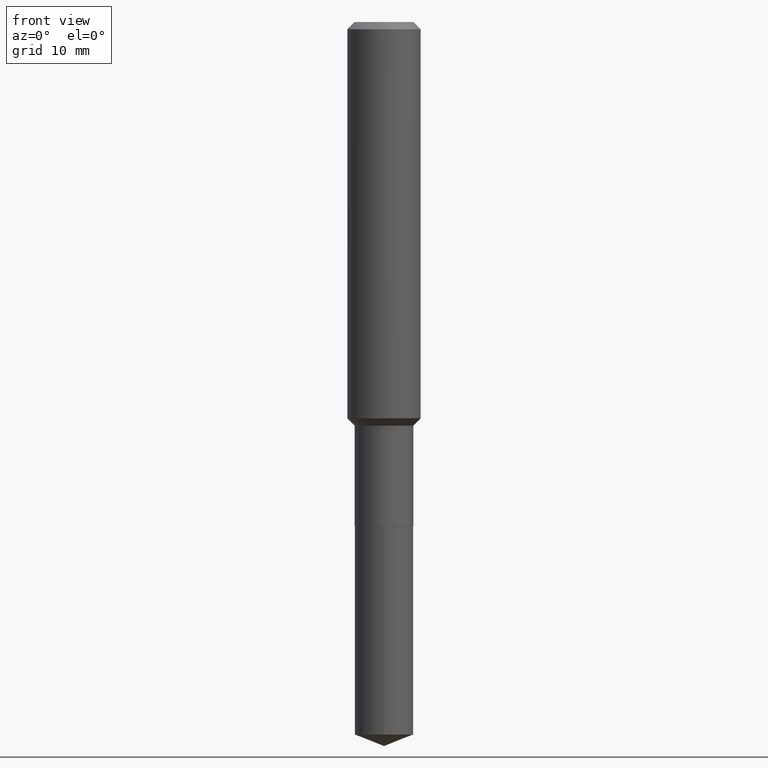
[diagram: clean part render]
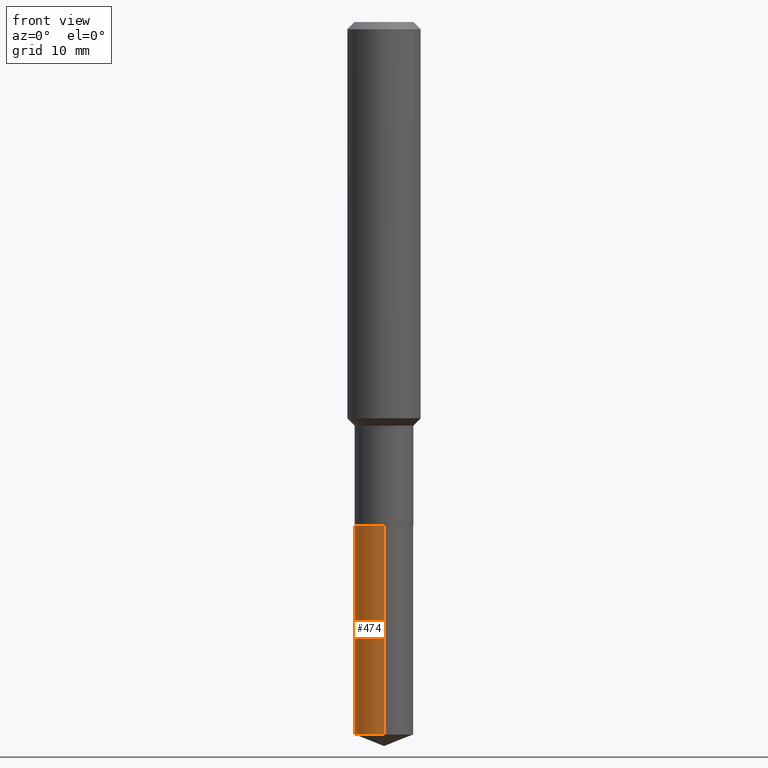
[diagram: same view with one face highlighted and labeled with its STEP entity id]
A machine part, front view. The second image highlights one B-rep face of the part: STEP entity #474.
In plain terms, the highlighted cylindrical surface (edge-blend (fillet) strip) has radius 3.2004 mm, axis along (-0, 0, 1).
Its self-contained STEP definition (entity closure, byte-faithful):
#7 = EDGE_CURVE ( 'NONE', #430, #361, #96, .T. ) ;
#11 = DIRECTION ( 'NONE',  ( -2.445321399674212397E-29, 3.491692433356646639E-15, 1.000000000000000000 ) ) ;
#21 = LINE ( 'NONE', #165, #238 ) ;
#57 = CARTESIAN_POINT ( 'NONE',  ( -8.798532973884166966E-16, -0.1260000000000075782, -2.165299999999999336 ) ) ;
#95 = AXIS2_PLACEMENT_3D ( 'NONE', #127, #279, #391 ) ;
#96 = CIRCLE ( 'NONE', #219, 0.1260000000000000009 ) ;
#102 = DIRECTION ( 'NONE',  ( -6.982962677686265922E-15, -1.000000000000000000, 4.336266656609941617E-15 ) ) ;
#112 = EDGE_CURVE ( 'NONE', #420, #361, #21, .T. ) ;
#122 = ORIENTED_EDGE ( 'NONE', *, *, #291, .F. ) ;
#127 = CARTESIAN_POINT ( 'NONE',  ( 5.295173606032675561E-29, -7.560104542997063911E-15, -2.165299999999999780 ) ) ;
#130 = DIRECTION ( 'NONE',  ( -2.445321399674212677E-29, 3.491692433356646244E-15, 1.000000000000000000 ) ) ;
#137 = CARTESIAN_POINT ( 'NONE',  ( 5.295173606032675561E-29, -7.560104542997063911E-15, -2.165299999999999780 ) ) ;
#155 = CIRCLE ( 'NONE', #309, 0.1260000000000000009 ) ;
#163 = ORIENTED_EDGE ( 'NONE', *, *, #112, .T. ) ;
#165 = CARTESIAN_POINT ( 'NONE',  ( -8.798532973884166966E-16, -0.1260000000000075782, -2.165299999999999336 ) ) ;
#206 = CYLINDRICAL_SURFACE ( 'NONE', #95, 0.1260000000000000009 ) ;
#219 = AXIS2_PLACEMENT_3D ( 'NONE', #137, #290, #102 ) ;
#225 = VECTOR ( 'NONE', #253, 39.37007874015748143 ) ;
#238 = VECTOR ( 'NONE', #11, 39.37007874015748143 ) ;
#240 = DIRECTION ( 'NONE',  ( -6.982962677686265922E-15, -1.000000000000000000, 4.336266656609941617E-15 ) ) ;
#248 = CARTESIAN_POINT ( 'NONE',  ( 8.952838470578011823E-16, 0.1259999999999893705, -3.060567280072518770 ) ) ;
#253 = DIRECTION ( 'NONE',  ( -2.445321399674212397E-29, 3.491692433356646639E-15, 1.000000000000000000 ) ) ;
#255 = CARTESIAN_POINT ( 'NONE',  ( 8.952838470578011823E-16, 0.1259999999999924514, -2.165300000000000669 ) ) ;
#257 = LINE ( 'NONE', #402, #225 ) ;
#278 = EDGE_LOOP ( 'NONE', ( #122, #422, #163, #442 ) ) ;
#279 = DIRECTION ( 'NONE',  ( -2.445321399674212677E-29, 3.491692433356646244E-15, 1.000000000000000000 ) ) ;
#290 = DIRECTION ( 'NONE',  ( -2.445321399674212677E-29, 3.491692433356646244E-15, 1.000000000000000000 ) ) ;
#291 = EDGE_CURVE ( 'NONE', #454, #430, #257, .T. ) ;
#309 = AXIS2_PLACEMENT_3D ( 'NONE', #315, #130, #240 ) ;
#315 = CARTESIAN_POINT ( 'NONE',  ( 7.484389844422130084E-29, -1.068610253065805926E-14, -3.060567280072517882 ) ) ;
#326 = FACE_OUTER_BOUND ( 'NONE', #278, .T. ) ;
#361 = VERTEX_POINT ( 'NONE', #57 ) ;
#391 = DIRECTION ( 'NONE',  ( -6.982962677686265922E-15, -1.000000000000000000, 4.336266656609941617E-15 ) ) ;
#394 = CARTESIAN_POINT ( 'NONE',  ( -8.798532973883949043E-16, -0.1260000000000107145, -3.060567280072517438 ) ) ;
#402 = CARTESIAN_POINT ( 'NONE',  ( 8.952838470577790942E-16, 0.1259999999999924514, -2.165300000000000669 ) ) ;
#420 = VERTEX_POINT ( 'NONE', #394 ) ;
#422 = ORIENTED_EDGE ( 'NONE', *, *, #456, .T. ) ;
#430 = VERTEX_POINT ( 'NONE', #255 ) ;
#442 = ORIENTED_EDGE ( 'NONE', *, *, #7, .F. ) ;
#454 = VERTEX_POINT ( 'NONE', #248 ) ;
#456 = EDGE_CURVE ( 'NONE', #454, #420, #155, .T. ) ;
#474 = ADVANCED_FACE ( 'NONE', ( #326 ), #206, .T. ) ;